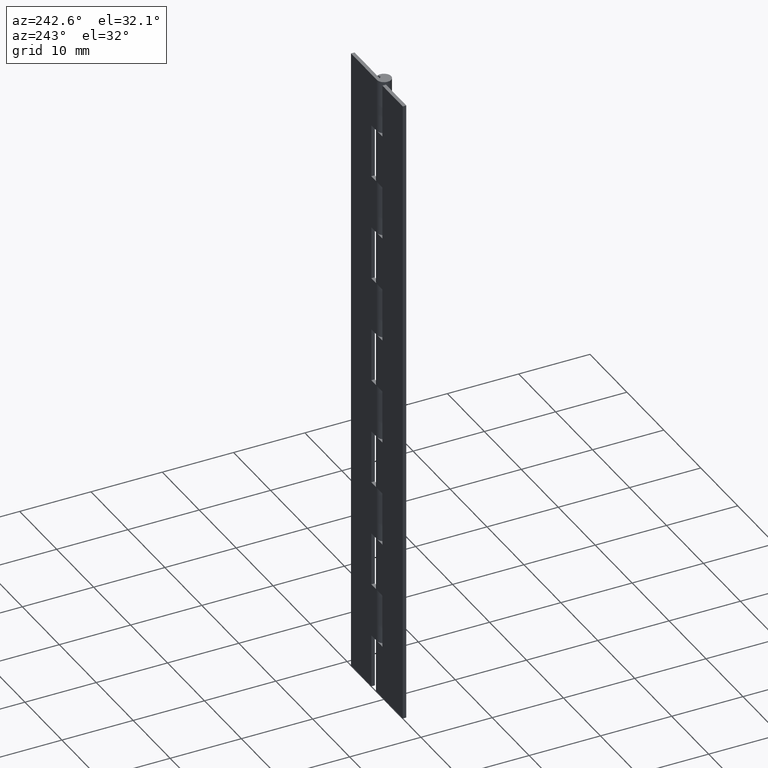
[diagram: clean part render]
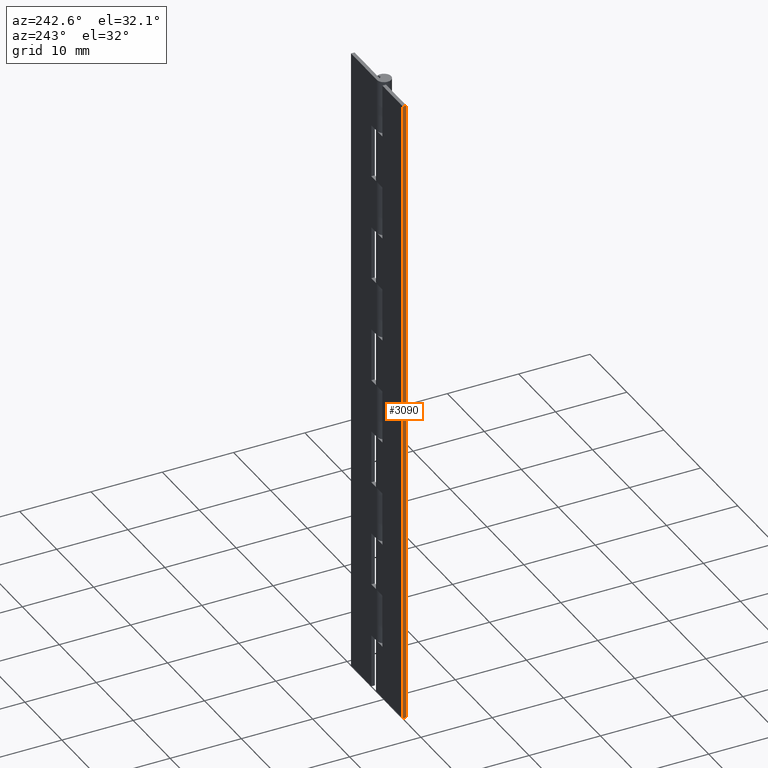
[diagram: same view with one face highlighted and labeled with its STEP entity id]
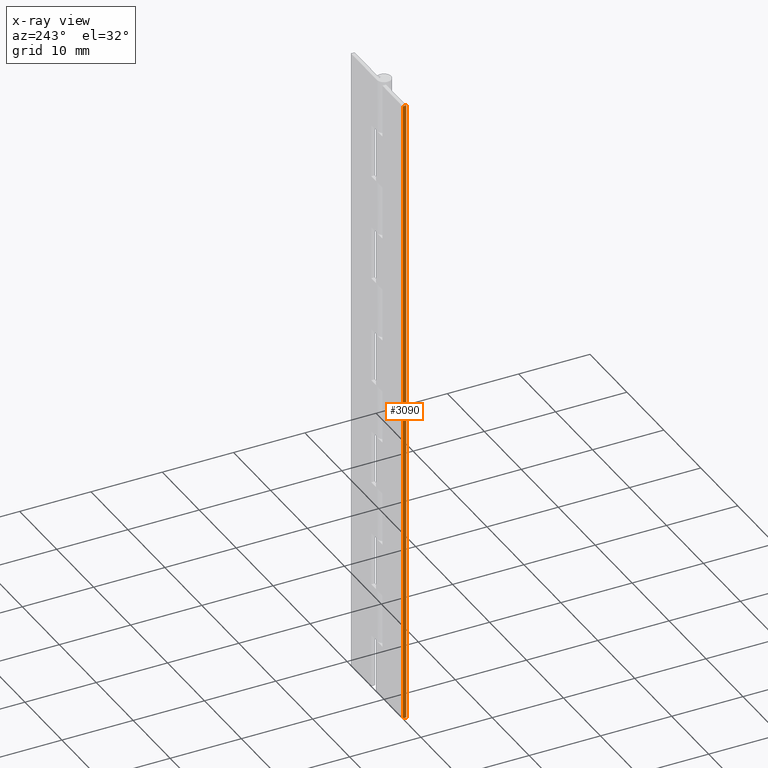
[diagram: x-ray of the same camera — body ghosted, the highlighted face saturated]
A machine part, auxiliary view. The second image highlights one B-rep face of the part: STEP entity #3090.
The next image is the same camera in x-ray: the body ghosted, the highlighted face saturated — about 0% of this face is hidden behind the body in this view.
In plain terms, the highlighted face is a freeform B-spline surface patch.
Its self-contained STEP definition (entity closure, byte-faithful):
#2772=CARTESIAN_POINT('',(-7.0,0.500000000000000,0.0));
#2773=VERTEX_POINT('',#2772);
#2774=CARTESIAN_POINT('',(-7.0,1.0,0.0));
#2775=VERTEX_POINT('',#2774);
#2776=CARTESIAN_POINT('',(-7.0,0.500000000000000,0.0));
#2777=CARTESIAN_POINT('',(-7.0,1.0,0.0));
#2778=QUASI_UNIFORM_CURVE('',1,(#2776,#2777),.UNSPECIFIED.,.F.,.U.);
#2779=EDGE_CURVE('',#2773,#2775,#2778,.T.);
#2850=CARTESIAN_POINT('',(-7.0,0.500000000000000,90.0));
#2851=VERTEX_POINT('',#2850);
#2858=CARTESIAN_POINT('',(-7.0,1.0,90.0));
#2859=VERTEX_POINT('',#2858);
#2865=CARTESIAN_POINT('',(-7.0,0.500000000000000,90.0));
#2866=CARTESIAN_POINT('',(-7.0,1.0,90.0));
#2867=QUASI_UNIFORM_CURVE('',1,(#2865,#2866),.UNSPECIFIED.,.F.,.U.);
#2868=EDGE_CURVE('',#2851,#2859,#2867,.T.);
#2881=CARTESIAN_POINT('',(-7.0,0.500000000000000,90.0));
#2882=CARTESIAN_POINT('',(-7.0,0.500000000000000,0.0));
#2883=QUASI_UNIFORM_CURVE('',1,(#2881,#2882),.UNSPECIFIED.,.F.,.U.);
#2884=EDGE_CURVE('',#2851,#2773,#2883,.T.);
#3069=CARTESIAN_POINT('',(-7.0,1.0,90.0));
#3070=CARTESIAN_POINT('',(-7.0,1.0,0.0));
#3071=QUASI_UNIFORM_CURVE('',1,(#3069,#3070),.UNSPECIFIED.,.F.,.U.);
#3072=EDGE_CURVE('',#2859,#2775,#3071,.T.);
#3079=CARTESIAN_POINT('',(-7.0,0.475025000969097,-4.495499825562538));
#3080=CARTESIAN_POINT('',(-7.0,0.475025000969097,94.495502239550646));
#3081=CARTESIAN_POINT('',(-7.0,1.024975012441948,-4.495499825562538));
#3082=CARTESIAN_POINT('',(-7.0,1.024975012441948,94.495502239550646));
#3083=B_SPLINE_SURFACE_WITH_KNOTS('',1,1,((#3079,#3081),(#3080,#3082)),.UNSPECIFIED.,.F.,.F.,.U.,(2,2),(2,2),(0.0,98.991002065113179),(0.041708334948495,0.958291687403247),.UNSPECIFIED.);
#3084=ORIENTED_EDGE('',*,*,#2779,.F.);
#3085=ORIENTED_EDGE('',*,*,#2884,.F.);
#3086=ORIENTED_EDGE('',*,*,#2868,.T.);
#3087=ORIENTED_EDGE('',*,*,#3072,.T.);
#3088=EDGE_LOOP('',(#3084,#3085,#3086,#3087));
#3089=FACE_OUTER_BOUND('',#3088,.T.);
#3090=ADVANCED_FACE('',(#3089),#3083,.T.);